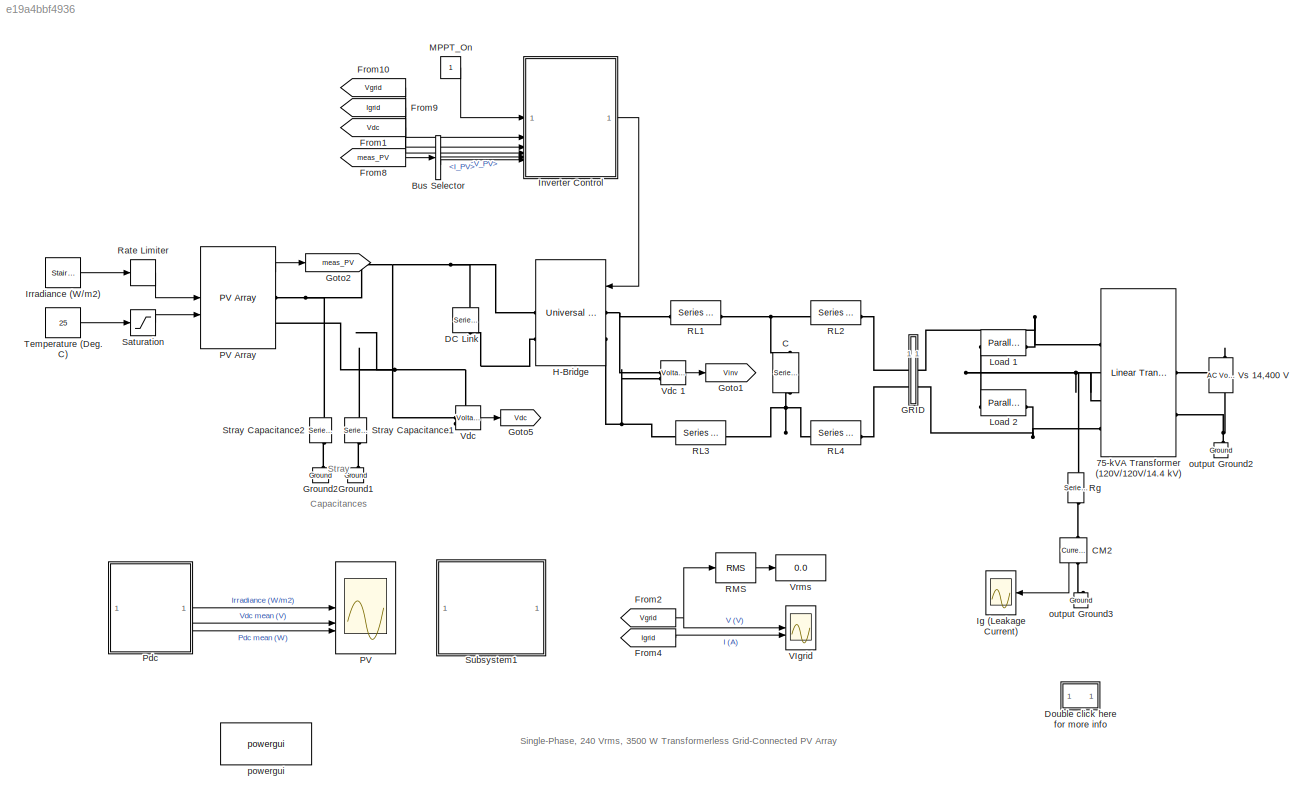
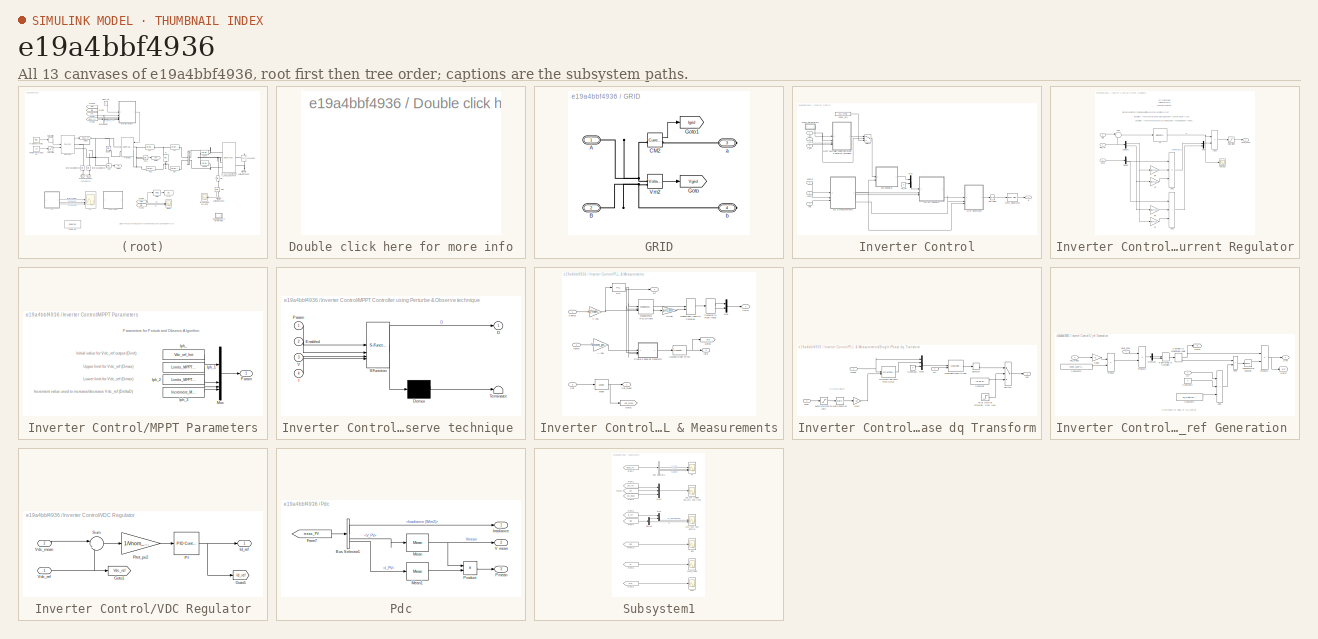
[diagram: thumbnail index - all 13 canvases of the model, root first then tree order]
MODEL slx_e19a4bbf4936
KIND model
CONFIG AbsTol = auto
CONFIG EnableMultiTasking = off
CONFIG FixedStep = auto
CONFIG InitFcn = %\nFc=3780;                          % PWM Carrier frequency (Hz) \nTs_Power=1/Fc/200;         % Simscape Power Systems sample time (s)\nTs_Control=20*Ts_Power;  % Inverter Control system sample time (s)
CONFIG MaxStep = auto
CONFIG MinStep = auto
CONFIG PreLoadFcn = %\nFc=3780;                          % PWM Carrier frequency (Hz) \nTs_Power=1/Fc/200;         % Simscape Power Systems sample time (s)\nTs_Control=20*Ts_Power;  % Inverter Control system sample time (s)
CONFIG RelTol = 1e-3
CONFIG SampleTimeConstraint = Unconstrained
CONFIG SolverName = FixedStepDiscrete
CONFIG StartTime = 0.0
CONFIG StopTime = 1.2
BLOCK [Reference] 75-kVA Transformer (120V//120V//14.4 kV)  REF=spsLinearTransformerLib/Linear Transformer
  LibrarySourceBlock = sps_lib/Power Grid Elements/Linear Transformer
  NameLocation = top
  SourceBlock = spsLinearTransformerLib/Linear Transformer
  SourceType = Linear Transformer
BLOCK [BusSelector] Bus Selector
  OutputSignals = V_PV,I_PV
BLOCK [Reference] C  REF=spsSeriesRLCLoadLib/Series RLC Load
  AttributesFormatString = \n
  LibrarySourceBlock = sps_lib/Passives/Series RLC Load
  NameLocation = right
  SourceBlock = spsSeriesRLCLoadLib/Series RLC Load
  SourceType = Series RLC Load
BLOCK [Reference] CM2  REF=spsCurrentMeasurementLib/Current Measurement
  LibrarySourceBlock = sps_lib/Sensors and Measurements/Current Measurement
  NameLocation = left
  SourceBlock = spsCurrentMeasurementLib/Current Measurement
  SourceType = Current Measurement
  UserDataPersistent = on
BLOCK [Reference] DC Link  REF=spsSeriesRLCBranchLib/Series RLC Branch
  AttributesFormatString = \n
  LibrarySourceBlock = sps_lib/Passives/Series RLC Branch
  NameLocation = left
  SourceBlock = spsSeriesRLCBranchLib/Series RLC Branch
  SourceType = Series RLC Branch
BLOCK [SubSystem] Double click here for more info
  OpenFcn = showdemo(bdroot(gcb))
BLOCK [From] From1
  CloseFcn = tagdialog Close
  GotoTag = Vdc
  TagVisibility = global
BLOCK [From] From10
  CloseFcn = tagdialog Close
  GotoTag = Vgrid
  TagVisibility = global
BLOCK [From] From2
  CloseFcn = tagdialog Close
  GotoTag = Vgrid
  TagVisibility = global
BLOCK [From] From4
  CloseFcn = tagdialog Close
  GotoTag = Igrid
  TagVisibility = global
BLOCK [From] From8
  CloseFcn = tagdialog Close
  GotoTag = meas_PV
  TagVisibility = global
BLOCK [From] From9
  CloseFcn = tagdialog Close
  GotoTag = Igrid
  TagVisibility = global
BLOCK [SubSystem] GRID
BLOCK [PMIOPort] GRID/A
  Side = Left
BLOCK [PMIOPort] GRID/B
  Port = 2
  Side = Left
BLOCK [Reference] GRID/CM2  REF=spsCurrentMeasurementLib/Current Measurement
  LibrarySourceBlock = sps_lib/Sensors and Measurements/Current Measurement
  SourceBlock = spsCurrentMeasurementLib/Current Measurement
  SourceType = Current Measurement
  UserDataPersistent = on
BLOCK [Goto] GRID/Goto
  GotoTag = Vgrid
  TagVisibility = global
BLOCK [Goto] GRID/Goto1
  GotoTag = Igrid
  TagVisibility = global
BLOCK [Reference] GRID/Vm2  REF=spsVoltageMeasurementLib/Voltage Measurement
  LibrarySourceBlock = sps_lib/Sensors and Measurements/Voltage Measurement
  SourceBlock = spsVoltageMeasurementLib/Voltage Measurement
  SourceType = Voltage Measurement
  UserDataPersistent = on
BLOCK [PMIOPort] GRID/a
  Port = 3
  Side = Right
BLOCK [PMIOPort] GRID/b
  Port = 4
  Side = Right
BLOCK [Goto] Goto1
  GotoTag = Vinv
  TagVisibility = global
BLOCK [Goto] Goto2
  GotoTag = meas_PV
  TagVisibility = global
BLOCK [Goto] Goto5
  GotoTag = Vdc
  TagVisibility = global
BLOCK [Reference] Ground1  REF=spsGroundLib/Ground
  LibrarySourceBlock = sps_lib/Utilities/Ground
  NameLocation = right
  SourceBlock = spsGroundLib/Ground
  SourceType = Ground
BLOCK [Reference] Ground2  REF=spsGroundLib/Ground
  LibrarySourceBlock = sps_lib/Utilities/Ground
  NameLocation = right
  SourceBlock = spsGroundLib/Ground
  SourceType = Ground
BLOCK [Reference] H-Bridge   REF=spsUniversalBridgeLib/Universal Bridge
  LibrarySourceBlock = sps_lib/Power Electronics/Universal Bridge
  SourceBlock = spsUniversalBridgeLib/Universal Bridge
  SourceType = Universal Bridge
BLOCK [Scope] Ig (Leakage Current)
  Floating = off
  NumInputPorts = 1
  ScopeSpecificationString = C++SS(StrPVP('Location','[1083, 173, 1496, 652]'),StrPVP('ZoomMode','yonly'),MxPVP('AxesTitles',54,'struct(''axes1'',''%<SignalLabel>'')'),MxPVP('ScopeGraphics',57,'struct(''FigureColor'',''[0.5 0.5 0.5]'',''AxesColor'',''[0 0 0]'',''AxesTickColor'',''[1 1 1]'',''LineColors'',''[1 1 0;1 0 1;0 1 1;1 0 0;0 1 0;0 0 1]'',''LineStyles'',''-|-|-|-|-|-'',''LineWidths'',''[0.5 0.5 0.5 0.5 0.5 0.5]'',''Mar...<+315ch>
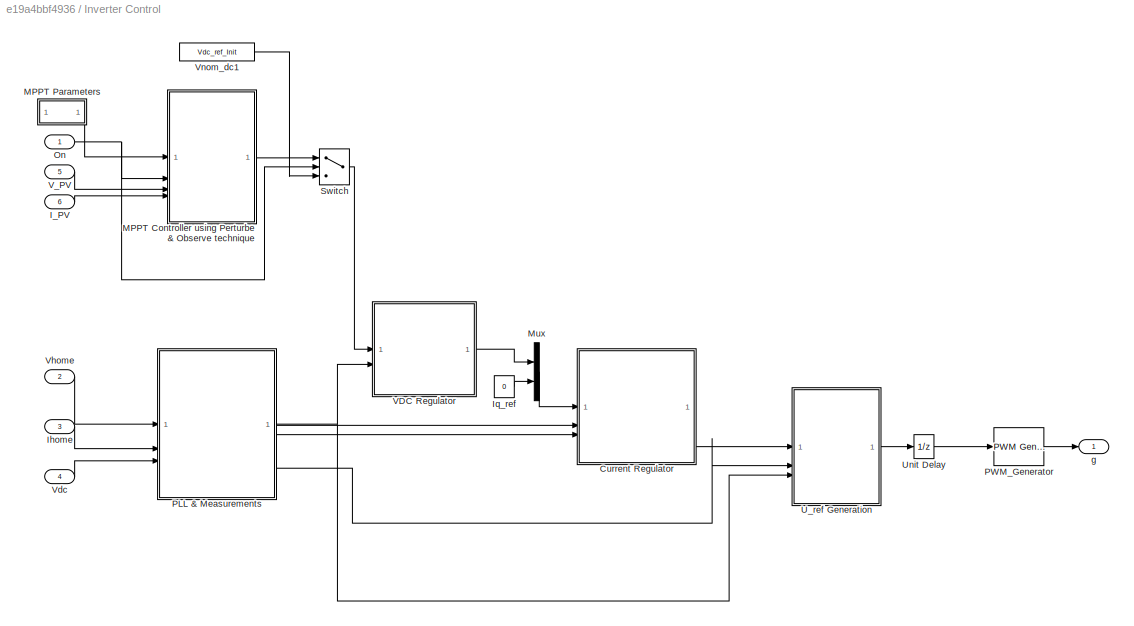
BLOCK [SubSystem] Inverter Control
BLOCK [SubSystem] Inverter Control/Current Regulator
BLOCK [Sum] Inverter Control/Current Regulator/Add1
  IconShape = rectangular
  Inputs = ++-
BLOCK [Sum] Inverter Control/Current Regulator/Add2
  IconShape = rectangular
BLOCK [Sum] Inverter Control/Current Regulator/Add3
  IconShape = rectangular
  Inputs = +++
BLOCK [Demux] Inverter Control/Current Regulator/Demux
  Outputs = 2
BLOCK [Demux] Inverter Control/Current Regulator/Demux1
  Outputs = 2
BLOCK [Inport] Inverter Control/Current Regulator/IdIq
  Port = 3
  PortDimensions = 2
BLOCK [Inport] Inverter Control/Current Regulator/IdIq_ref
  PortDimensions = 2
BLOCK [Gain] Inverter Control/Current Regulator/Lff
  Gain = RLff(2)
  OutDataTypeStr = Inherit: Same as input
  ParamDataTypeStr = Inherit: Same as input
  SaturateOnIntegerOverflow = on
BLOCK [Gain] Inverter Control/Current Regulator/Lff  
  Gain = RLff(2)
  OutDataTypeStr = Inherit: Same as input
  ParamDataTypeStr = Inherit: Same as input
  SaturateOnIntegerOverflow = on
BLOCK [Mux] Inverter Control/Current Regulator/Mux
  DisplayOption = bar
  Inputs = 2
BLOCK [Reference] Inverter Control/Current Regulator/PI  REF=slpidlib/PID Controller
  SourceBlock = slpidlib/PID Controller
  SourceType = PID 1dof
BLOCK [Scope] Inverter Control/Current Regulator/PI_Ireg1
  Floating = off
  NumInputPorts = 1
  ScopeSpecificationString = C++SS(StrPVP('Location','[1318, 429, 1642, 668]'),MxPVP('AxesTitles',54,'struct(''axes1'',''%<SignalLabel>'')'),MxPVP('ScopeGraphics',57,'struct(''FigureColor'',''[0.5 0.5 0.5]'',''AxesColor'',''[0 0 0]'',''AxesTickColor'',''[1 1 1]'',''LineColors'',''[1 1 0;1 0 1;0 1 1;1 0 0;0 1 0;0 0 1]'',''LineStyles'',''-|-|-|-|-|-'',''LineWidths'',''[0.5 0.5 0.5 0.5 0.5 0.5]'',''MarkerStyles'',''none|none|non...<+191ch>
BLOCK [Gain] Inverter Control/Current Regulator/Rff
  Gain = RLff(1)
  NameLocation = top
  OutDataTypeStr = Inherit: Same as input
  ParamDataTypeStr = Inherit: Same as input
  SaturateOnIntegerOverflow = on
BLOCK [Gain] Inverter Control/Current Regulator/Rff 
  Gain = RLff(1)
  NameLocation = top
  OutDataTypeStr = Inherit: Same as input
  ParamDataTypeStr = Inherit: Same as input
  SaturateOnIntegerOverflow = on
BLOCK [Saturate] Inverter Control/Current Regulator/Saturation
  LowerLimit = -1.5
  UpperLimit = 1.5
BLOCK [Sum] Inverter Control/Current Regulator/Sum
  Inputs = |-+
BLOCK [Inport] Inverter Control/Current Regulator/VdVq
  Port = 2
  PortDimensions = 2
BLOCK [Outport] Inverter Control/Current Regulator/VdVq_conv
  VectorParamsAs1DForOutWhenUnconnected = off
BLOCK [Inport] Inverter Control/I_PV
  Port = 6
  PortDimensions = 1
BLOCK [Inport] Inverter Control/Ihome
  Port = 3
  PortDimensions = 1
BLOCK [Constant] Inverter Control/Iq_ref
  NameLocation = top
  Value = 0
BLOCK [SubSystem] Inverter Control/MPPT Controller using Perturbe & Observe technique 
  ErrorFcn = Stateflow.Translate.translate
  PermitHierarchicalResolution = ExplicitOnly
  SFBlockType = MATLAB Function
  TreatAsAtomicUnit = on
BLOCK [Demux] Inverter Control/MPPT Controller using Perturbe & Observe technique / Demux 
  Outputs = 1
BLOCK [S-Function] Inverter Control/MPPT Controller using Perturbe & Observe technique / SFunction 
  EnableBusSupport = on
  FunctionName = sf_sfun
  PortCounts = [4 2]
  SFcnIsStateOwnerBlock = off
  SFunctionDeploymentMode = off
  Tag = Stateflow S-Function 2
BLOCK [Terminator] Inverter Control/MPPT Controller using Perturbe & Observe technique / Terminator 
BLOCK [Outport] Inverter Control/MPPT Controller using Perturbe & Observe technique /D
  VectorParamsAs1DForOutWhenUnconnected = off
BLOCK [Inport] Inverter Control/MPPT Controller using Perturbe & Observe technique /Enabled
  Port = 2
BLOCK [Inport] Inverter Control/MPPT Controller using Perturbe & Observe technique /I
  Port = 4
BLOCK [Inport] Inverter Control/MPPT Controller using Perturbe & Observe technique /Param
BLOCK [Inport] Inverter Control/MPPT Controller using Perturbe & Observe technique /V
  Port = 3
BLOCK [SubSystem] Inverter Control/MPPT Parameters
  NameLocation = top
BLOCK [Constant] Inverter Control/MPPT Parameters/Iph_
  Value = Vdc_ref_Init
BLOCK [Constant] Inverter Control/MPPT Parameters/Iph_1
  Value = Limits_MPPT(1)
BLOCK [Constant] Inverter Control/MPPT Parameters/Iph_2
  Value = Limits_MPPT(2)
BLOCK [Constant] Inverter Control/MPPT Parameters/Iph_3
  Value = Increment_MPPT
BLOCK [Mux] Inverter Control/MPPT Parameters/Mux
  DisplayOption = bar
BLOCK [Outport] Inverter Control/MPPT Parameters/Param
  VectorParamsAs1DForOutWhenUnconnected = off
BLOCK [Mux] Inverter Control/Mux
  DisplayOption = bar
  Inputs = 2
BLOCK [Inport] Inverter Control/On
  PortDimensions = 1
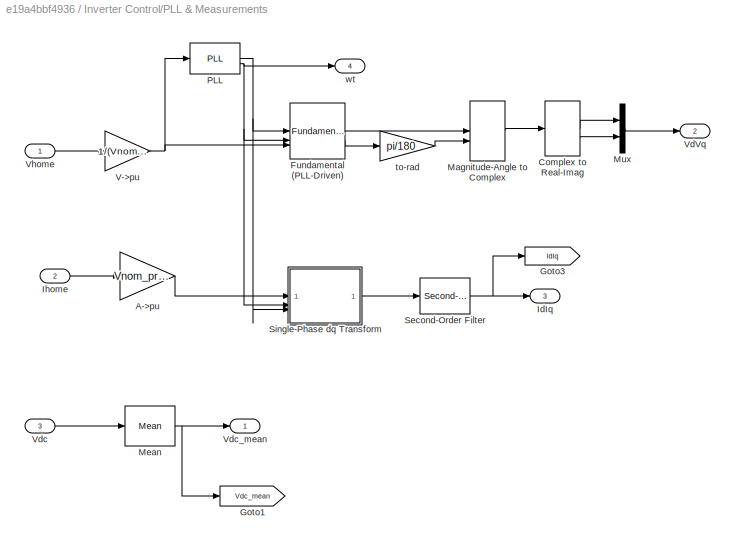
BLOCK [SubSystem] Inverter Control/PLL & Measurements
BLOCK [Gain] Inverter Control/PLL & Measurements/A->pu
  Gain = Vnom_prim/Pnom/sqrt(2)
  OutDataTypeStr = Inherit: Same as input
  ParamDataTypeStr = Inherit: Same as input
  SaturateOnIntegerOverflow = on
BLOCK [ComplexToRealImag] Inverter Control/PLL & Measurements/Complex to Real-Imag
BLOCK [Reference] Inverter Control/PLL & Measurements/Fundamental (PLL-Driven)  REF=spsFundamentalPLLDrivenLib/Fundamental
(PLL-Driven)
  LibrarySourceBlock = sps_lib/Sensors and Measurements/Fundamental\n(PLL-Driven)
  SourceBlock = spsFundamentalPLLDrivenLib/Fundamental\n(PLL-Driven)
  SourceType = Fundamental (PLL-Driven)
BLOCK [Goto] Inverter Control/PLL & Measurements/Goto1
  GotoTag = Vdc_mean
  TagVisibility = global
BLOCK [Goto] Inverter Control/PLL & Measurements/Goto3
  GotoTag = IdIq
  TagVisibility = global
BLOCK [Outport] Inverter Control/PLL & Measurements/IdIq
  Port = 3
  VectorParamsAs1DForOutWhenUnconnected = off
BLOCK [Inport] Inverter Control/PLL & Measurements/Ihome
  Port = 2
BLOCK [MagnitudeAngleToComplex] Inverter Control/PLL & Measurements/Magnitude-Angle to Complex
BLOCK [Reference] Inverter Control/PLL & Measurements/Mean  REF=spsMeanLib/Mean
  LibrarySourceBlock = sps_lib/Sensors and Measurements/Mean
  SourceBlock = spsMeanLib/Mean
  SourceType = Mean
BLOCK [Mux] Inverter Control/PLL & Measurements/Mux
  DisplayOption = bar
  Inputs = 2
BLOCK [Reference] Inverter Control/PLL & Measurements/PLL  REF=spsPLLLib/PLL
  LibrarySourceBlock = sps_lib/Control/PLL
  SourceBlock = spsPLLLib/PLL
  SourceType = PLL
BLOCK [Reference] Inverter Control/PLL & Measurements/Second-Order Filter  REF=spsSecondOrderFilterLib/Second-Order
Filter
  LibrarySourceBlock = sps_lib/Control/Filters/Second-Order\nFilter
  SourceBlock = spsSecondOrderFilterLib/Second-Order\nFilter
  SourceType = Second-Order Filter
BLOCK [SubSystem] Inverter Control/PLL & Measurements/Single-Phase dq Transform
BLOCK [Reference] Inverter Control/PLL & Measurements/Single-Phase dq Transform/Alpha-Beta-Zero to dq0  REF=spsAlphaBetaZerotodq0Lib/Alpha-Beta-Zero
to dq0
  LibrarySourceBlock = sps_lib/Control/Alpha-Beta-Zero\nto dq0
  SourceBlock = spsAlphaBetaZerotodq0Lib/Alpha-Beta-Zero\nto dq0
  SourceType = Alpha-Beta-Zero to dq0 Transformation
BLOCK [Constant] Inverter Control/PLL & Measurements/Single-Phase dq Transform/Constant
  Value = [0.92 0]
BLOCK [Constant] Inverter Control/PLL & Measurements/Single-Phase dq Transform/Constant1
  Value = 0
BLOCK [Reference] Inverter Control/PLL & Measurements/Single-Phase dq Transform/Discrete Variable Time Delay  REF=spsDiscreteVariableTimeDelayLib/Discrete Variable
Time Delay
  LibrarySourceBlock = sps_lib/Control/Discrete Variable\nTime Delay
  SourceBlock = spsDiscreteVariableTimeDelayLib/Discrete Variable\nTime Delay
  SourceType = Discrete Variable Time Delay
BLOCK [Step] Inverter Control/PLL & Measurements/Single-Phase dq Transform/First cycle of simulation Id=0.92, Iq=0
  SampleTime = Ts_Control
  Time = 1/Fnom
BLOCK [Inport] Inverter Control/PLL & Measurements/Single-Phase dq Transform/Freq
  Port = 3
BLOCK [Gain] Inverter Control/PLL & Measurements/Single-Phase dq Transform/Gain
  Gain = 1/4
BLOCK [Outport] Inverter Control/PLL & Measurements/Single-Phase dq Transform/Idq
  VectorParamsAs1DForOutWhenUnconnected = off
BLOCK [Inport] Inverter Control/PLL & Measurements/Single-Phase dq Transform/Imeas
BLOCK [Math] Inverter Control/PLL & Measurements/Single-Phase dq Transform/Math Function
  Operator = reciprocal
  SignedPower = on
BLOCK [Mux] Inverter Control/PLL & Measurements/Single-Phase dq Transform/Mux1
  DisplayOption = bar
  Inputs = 3
BLOCK [Selector] Inverter Control/PLL & Measurements/Single-Phase dq Transform/Selector
  IndexOptions = Index vector (dialog)
  Indices = [1 2]
  InputPortWidth = 3
  OutputSizes = 1
BLOCK [Switch] Inverter Control/PLL & Measurements/Single-Phase dq Transform/Switch
  Criteria = u2 ~= 0
  InputSameDT = off
  SaturateOnIntegerOverflow = off
BLOCK [Saturate] Inverter Control/PLL & Measurements/Single-Phase dq Transform/avoid division by zero
  LowerLimit = 40
  UpperLimit = 70
BLOCK [Inport] Inverter Control/PLL & Measurements/Single-Phase dq Transform/wt
  Port = 2
BLOCK [Gain] Inverter Control/PLL & Measurements/V->pu
  Gain = 1/(Vnom_prim*sqrt(2))
  OutDataTypeStr = Inherit: Same as input
  ParamDataTypeStr = Inherit: Same as input
  SaturateOnIntegerOverflow = on
BLOCK [Outport] Inverter Control/PLL & Measurements/VdVq
  Port = 2
  VectorParamsAs1DForOutWhenUnconnected = off
BLOCK [Inport] Inverter Control/PLL & Measurements/Vdc
  Port = 3
BLOCK [Outport] Inverter Control/PLL & Measurements/Vdc_mean
  VectorParamsAs1DForOutWhenUnconnected = off
BLOCK [Inport] Inverter Control/PLL & Measurements/Vhome
BLOCK [Gain] Inverter Control/PLL & Measurements/to-rad
  Gain = pi/180
BLOCK [Outport] Inverter Control/PLL & Measurements/wt
  Port = 4
  VectorParamsAs1DForOutWhenUnconnected = off
BLOCK [Reference] Inverter Control/PWM_Generator  REF=spsPWMGenerator2LevelLib/PWM Generator
(2-Level)
  AttributesFormatString = %<ModulatorType>
  LibrarySourceBlock = sps_lib/Power Electronics/Power Electronics Control/PWM Generator\n(2-Level)
  SourceBlock = spsPWMGenerator2LevelLib/PWM Generator\n(2-Level)
  SourceType = PWM Generator (2-Level)
BLOCK [Switch] Inverter Control/Switch
  Criteria = u2 ~= 0
  InputSameDT = off
  SaturateOnIntegerOverflow = off
BLOCK [SubSystem] Inverter Control/U_ref Generation 
BLOCK [Sum] Inverter Control/U_ref Generation /Add1
  IconShape = rectangular
  Inputs = +++
BLOCK [Sum] Inverter Control/U_ref Generation /Add2
  IconShape = rectangular
BLOCK [ComplexToMagnitudeAngle] Inverter Control/U_ref Generation /Complex to Magnitude-Angle
BLOCK [Constant] Inverter Control/U_ref Generation /Constant2
  Value = 0
BLOCK [Constant] Inverter Control/U_ref Generation /Constant3
  Value = Vnom_prim*sqrt(2)
BLOCK [Constant] Inverter Control/U_ref Generation /Constant4
  Value = Ts_Control*Fnom*(2*pi)
BLOCK [Demux] Inverter Control/U_ref Generation /Demux1
  Outputs = 2
BLOCK [Gain] Inverter Control/U_ref Generation /Gain1
BLOCK [Goto] Inverter Control/U_ref Generation /Goto1
  GotoTag = m
  TagVisibility = global
BLOCK [Goto] Inverter Control/U_ref Generation /Goto2
  GotoTag = Uref
  TagVisibility = global
BLOCK [Product] Inverter Control/U_ref Generation /Product
  Inputs = */
  RndMeth = Zero
BLOCK [Product] Inverter Control/U_ref Generation /Product1
  Inputs = */
  RndMeth = Zero
BLOCK [Product] Inverter Control/U_ref Generation /Product2
  Inputs = **
  RndMeth = Zero
BLOCK [RealImagToComplex] Inverter Control/U_ref Generation /Real-Imag to Complex
BLOCK [Trigonometry] Inverter Control/U_ref Generation /Trigonometric Function
BLOCK [Outport] Inverter Control/U_ref Generation /Uref
  VectorParamsAs1DForOutWhenUnconnected = off
BLOCK [Inport] Inverter Control/U_ref Generation /VdVq_conv
BLOCK [Inport] Inverter Control/U_ref Generation /Vdc_mean
  Port = 3
BLOCK [Inport] Inverter Control/U_ref Generation /wt
  Port = 2
BLOCK [UnitDelay] Inverter Control/Unit Delay
  HasFrameUpgradeWarning = on
  InitialCondition = 0.1684
  NameLocation = top
  SampleTime = Ts_Control
BLOCK [SubSystem] Inverter Control/VDC Regulator
  NameLocation = top
BLOCK [Goto] Inverter Control/VDC Regulator/Goto1
  GotoTag = Vdc_ref
  TagVisibility = global
BLOCK [Goto] Inverter Control/VDC Regulator/Goto5
  GotoTag = Id_ref
  TagVisibility = global
BLOCK [Outport] Inverter Control/VDC Regulator/Id_ref
  InitialOutput = 0
  VectorParamsAs1DForOutWhenUnconnected = off
BLOCK [Reference] Inverter Control/VDC Regulator/PI  REF=slpidlib/PID Controller
  SourceBlock = slpidlib/PID Controller
  SourceType = PID 1dof
BLOCK [Gain] Inverter Control/VDC Regulator/Rtot_pu2
  Gain = 1/Vnom_dc
  OutDataTypeStr = Inherit: Same as input
  ParamDataTypeStr = Inherit: Same as input
  SaturateOnIntegerOverflow = on
BLOCK [Sum] Inverter Control/VDC Regulator/Sum
  Inputs = |+-
BLOCK [Inport] Inverter Control/VDC Regulator/Vdc_mean
  Port = 2
  PortDimensions = 1
BLOCK [Inport] Inverter Control/VDC Regulator/Vdc_ref
  PortDimensions = 1
BLOCK [Inport] Inverter Control/V_PV
  Port = 5
  PortDimensions = 1
BLOCK [Inport] Inverter Control/Vdc
  Port = 4
  PortDimensions = 1
BLOCK [Inport] Inverter Control/Vhome
  Port = 2
  PortDimensions = 1
BLOCK [Constant] Inverter Control/Vnom_dc1
  Value = Vdc_ref_Init
BLOCK [Outport] Inverter Control/g
  NameLocation = top
  VectorParamsAs1DForOutWhenUnconnected = off
BLOCK [Reference] Irradiance (W//m2)  REF=spsStairGeneratorLib/Stair
Generator
  LibrarySourceBlock = sps_lib/Sources/Signal Generator Sources/Stair\nGenerator
  NameLocation = top
  SourceBlock = spsStairGeneratorLib/Stair\nGenerator
  SourceType = Stair Generator
BLOCK [Reference] Load 1  REF=spsParallelRLCLoadLib/Parallel RLC Load
  AttributesFormatString = \n
  LibrarySourceBlock = sps_lib/Passives/Parallel RLC Load
  NameLocation = top
  SourceBlock = spsParallelRLCLoadLib/Parallel RLC Load
  SourceType = Parallel RLC Load
BLOCK [Reference] Load 2  REF=spsParallelRLCLoadLib/Parallel RLC Load
  AttributesFormatString = \n
  LibrarySourceBlock = sps_lib/Passives/Parallel RLC Load
  SourceBlock = spsParallelRLCLoadLib/Parallel RLC Load
  SourceType = Parallel RLC Load
BLOCK [Constant] MPPT_On
  NameLocation = top
BLOCK [Scope] PV
  Floating = off
  NumInputPorts = 3
  ScopeSpecificationString = Simulink.scopes.TimeScopeBlockCfg('CurrentConfiguration', extmgr.ConfigurationSet(extmgr.Configuration('Core','General UI',true),extmgr.Configuration('Core','Source UI',true),extmgr.Configuration('Sources','WiredSimulink',true,'DataLoggingDecimation','10','DataLoggingDecimateData',true,'DataLoggingSaveFormat','Array'),extmgr.Configuration('Visuals','Time Domain',true,'SerializedDisplays',{struct('...<+3320ch>
BLOCK [Reference] PV Array  REF=spsPVArrayLib/PV Array
  AttributesFormatString = %<ModuleName>\n%<Nser>-module string\n%<Npar> parallel strings
  LibrarySourceBlock = sps_lib/Sources/PV Array
  SourceBlock = spsPVArrayLib/PV Array
  SourceType = PV array
BLOCK [SubSystem] Pdc
BLOCK [BusSelector] Pdc/Bus Selector1
  OutputSignals = Irradiance (W/m2),V_PV,I_PV
BLOCK [From] Pdc/From7
  CloseFcn = tagdialog Close
  GotoTag = meas_PV
  TagVisibility = global
BLOCK [Outport] Pdc/Irradiance
  VectorParamsAs1DForOutWhenUnconnected = off
BLOCK [Reference] Pdc/Mean  REF=spsMeanLib/Mean
  LibrarySourceBlock = sps_lib/Sensors and Measurements/Mean
  SourceBlock = spsMeanLib/Mean
  SourceType = Mean
BLOCK [Reference] Pdc/Mean1  REF=spsMeanLib/Mean
  LibrarySourceBlock = sps_lib/Sensors and Measurements/Mean
  SourceBlock = spsMeanLib/Mean
  SourceType = Mean
BLOCK [Outport] Pdc/Pmean
  Port = 3
  VectorParamsAs1DForOutWhenUnconnected = off
BLOCK [Product] Pdc/Product
BLOCK [Outport] Pdc/V mean
  Port = 2
  VectorParamsAs1DForOutWhenUnconnected = off
BLOCK [Reference] RL1  REF=spsSeriesRLCBranchLib/Series RLC Branch
  LibrarySourceBlock = sps_lib/Passives/Series RLC Branch
  NameLocation = top
  SourceBlock = spsSeriesRLCBranchLib/Series RLC Branch
  SourceType = Series RLC Branch
BLOCK [Reference] RL2  REF=spsSeriesRLCBranchLib/Series RLC Branch
  LibrarySourceBlock = sps_lib/Passives/Series RLC Branch
  NameLocation = top
  SourceBlock = spsSeriesRLCBranchLib/Series RLC Branch
  SourceType = Series RLC Branch
BLOCK [Reference] RL3  REF=spsSeriesRLCBranchLib/Series RLC Branch
  LibrarySourceBlock = sps_lib/Passives/Series RLC Branch
  NameLocation = top
  SourceBlock = spsSeriesRLCBranchLib/Series RLC Branch
  SourceType = Series RLC Branch
BLOCK [Reference] RL4  REF=spsSeriesRLCBranchLib/Series RLC Branch
  LibrarySourceBlock = sps_lib/Passives/Series RLC Branch
  NameLocation = top
  SourceBlock = spsSeriesRLCBranchLib/Series RLC Branch
  SourceType = Series RLC Branch
BLOCK [Reference] RMS  REF=spsRMSLib/RMS
  LibrarySourceBlock = sps_lib/Sensors and Measurements/RMS
  NameLocation = top
  SourceBlock = spsRMSLib/RMS
  SourceType = RMS
BLOCK [RateLimiter] Rate Limiter
  FallingSlewLimit = -8000
  InitialCondition = 1000
  NameLocation = top
  RisingSlewLimit = 8000
  SampleTimeMode = inherited
BLOCK [Reference] Rg  REF=spsSeriesRLCBranchLib/Series RLC Branch
  LibrarySourceBlock = sps_lib/Passives/Series RLC Branch
  NameLocation = left
  SourceBlock = spsSeriesRLCBranchLib/Series RLC Branch
  SourceType = Series RLC Branch
BLOCK [Saturate] Saturation
  LowerLimit = 5
  UpperLimit = 55
BLOCK [Reference] Stray Capacitance1  REF=spsSeriesRLCBranchLib/Series RLC Branch
  LibrarySourceBlock = sps_lib/Passives/Series RLC Branch
  NameLocation = left
  SourceBlock = spsSeriesRLCBranchLib/Series RLC Branch
  SourceType = Series RLC Branch
BLOCK [Reference] Stray Capacitance2  REF=spsSeriesRLCBranchLib/Series RLC Branch
  LibrarySourceBlock = sps_lib/Passives/Series RLC Branch
  NameLocation = left
  SourceBlock = spsSeriesRLCBranchLib/Series RLC Branch
  SourceType = Series RLC Branch
BLOCK [SubSystem] Subsystem1
  NameLocation = top
BLOCK [BusSelector] Subsystem1/Bus Selector1
  OutputSignals = V_PV,I_PV,I_diode
BLOCK [Demux] Subsystem1/Demux
  Outputs = 2
BLOCK [From] Subsystem1/From1
  GotoTag = Vdc_ref
  TagVisibility = global
BLOCK [From] Subsystem1/From13
  CloseFcn = tagdialog Close
  GotoTag = Vinv
  TagVisibility = global
BLOCK [From] Subsystem1/From2
  GotoTag = Vdc
  TagVisibility = global
BLOCK [From] Subsystem1/From3
  CloseFcn = tagdialog Close
  GotoTag = Uref
  TagVisibility = global
BLOCK [From] Subsystem1/From4
  CloseFcn = tagdialog Close
  GotoTag = IdIq
  TagVisibility = global
BLOCK [From] Subsystem1/From5
  CloseFcn = tagdialog Close
  GotoTag = Id_ref
  TagVisibility = global
BLOCK [From] Subsystem1/From7
  CloseFcn = tagdialog Close
  GotoTag = meas_PV
  TagVisibility = global
BLOCK [From] Subsystem1/From8
  CloseFcn = tagdialog Close
  GotoTag = m
  TagVisibility = global
BLOCK [From] Subsystem1/From9
  GotoTag = Vdc_mean
  TagVisibility = global
BLOCK [Scope] Subsystem1/IdIq (pu) VSC Control
  Floating = off
  NumInputPorts = 2
  ScopeSpecificationString = Simulink.scopes.TimeScopeBlockCfg('CurrentConfiguration', extmgr.ConfigurationSet(extmgr.Configuration('Core','General UI',true),extmgr.Configuration('Core','Source UI',true),extmgr.Configuration('Sources','WiredSimulink',true,'DataLoggingSaveFormat','Array','DataLoggingDecimation','1','DataLoggingDecimateData',true),extmgr.Configuration('Visuals','Time Domain',true,'SerializedDisplays',{struct('M...<+2533ch>
BLOCK [Scope] Subsystem1/Mod_Index
  Floating = off
  NumInputPorts = 1
  ScopeSpecificationString = Simulink.scopes.TimeScopeBlockCfg('CurrentConfiguration', extmgr.ConfigurationSet(extmgr.Configuration('Core','General UI',true),extmgr.Configuration('Core','Source UI',true),extmgr.Configuration('Sources','WiredSimulink',true,'DataLoggingVariableName','Vab_VSC','DataLoggingSaveFormat','StructureWithTime','DataLoggingDecimation','1','DataLoggingDecimateData',true),extmgr.Configuration('Visuals','T...<+1816ch>
BLOCK [Mux] Subsystem1/Mux
  DisplayOption = bar
  Inputs = 2
BLOCK [Mux] Subsystem1/Mux1
  DisplayOption = bar
  Inputs = 3
BLOCK [Scope] Subsystem1/PV
  Floating = off
  NumInputPorts = 3
  ScopeSpecificationString = Simulink.scopes.TimeScopeBlockCfg('CurrentConfiguration', extmgr.ConfigurationSet(extmgr.Configuration('Core','General UI',true),extmgr.Configuration('Core','Source UI',true),extmgr.Configuration('Sources','WiredSimulink',true,'DataLoggingVariableName','ScopeData2','DataLoggingDecimation','10','DataLoggingDecimateData',true,'DataLoggingSaveFormat','Array'),extmgr.Configuration('Visuals','Time Doma...<+3357ch>
BLOCK [Scope] Subsystem1/Uref
  Floating = off
  NumInputPorts = 1
  ScopeSpecificationString = C++SS(StrPVP('Location','[761, 234, 1188, 708]'),StrPVP('ZoomMode','xonly'),MxPVP('AxesTitles',54,'struct(''axes1'',''%<SignalLabel>'')'),MxPVP('ScopeGraphics',57,'struct(''FigureColor'',''[0.5 0.5 0.5]'',''AxesColor'',''[0 0 0]'',''AxesTickColor'',''[1 1 1]'',''LineColors'',''[1 1 0;1 0 1;0 1 1;1 0 0;0 1 0;0 0 1]'',''LineStyles'',''-|-|-|-|-|-'',''LineWidths'',''[0.5 0.5 0.5 0.5 0.5 0.5]'',''Mark...<+279ch>
BLOCK [Scope] Subsystem1/Vdc_ref (yellow) Vdc_meas (blue) Vdc_mean (red)
  Floating = off
  NumInputPorts = 1
  ScopeSpecificationString = Simulink.scopes.TimeScopeBlockCfg('CurrentConfiguration', extmgr.ConfigurationSet(extmgr.Configuration('Core','General UI',true),extmgr.Configuration('Core','Source UI',true),extmgr.Configuration('Sources','WiredSimulink',true,'DataLoggingVariableName','ScopeData1','DataLoggingDecimation','10','DataLoggingDecimateData',true,'DataLoggingSaveFormat','Array'),extmgr.Configuration('Visuals','Time Doma...<+1775ch>
BLOCK [Scope] Subsystem1/Vinv
  Floating = off
  NumInputPorts = 1
  ScopeSpecificationString = Simulink.scopes.TimeScopeBlockCfg('CurrentConfiguration', extmgr.ConfigurationSet(extmgr.Configuration('Core','General UI',true),extmgr.Configuration('Core','Source UI',true),extmgr.Configuration('Sources','WiredSimulink',true,'DataLogging',true,'DataLoggingVariableName','Vinv','DataLoggingSaveFormat','StructureWithTime','DataLoggingDecimation','1','DataLoggingDecimateData',true),extmgr.Configurat...<+1853ch>
BLOCK [Constant] Temperature (Deg. C)
  Value = 25
BLOCK [Scope] VIgrid
  Floating = off
  NumInputPorts = 2
  ScopeSpecificationString = Simulink.scopes.TimeScopeBlockCfg('CurrentConfiguration', extmgr.ConfigurationSet(extmgr.Configuration('Core','General UI',true),extmgr.Configuration('Core','Source UI',true),extmgr.Configuration('Sources','WiredSimulink',true,'DataLogging',true,'DataLoggingVariableName','VIgrid','DataLoggingSaveFormat','StructureWithTime','DataLoggingDecimation','1','DataLoggingDecimateData',true),extmgr.Configur...<+2378ch>
BLOCK [Reference] Vdc   REF=spsVoltageMeasurementLib/Voltage Measurement
  AttributesFormatString = \n
  LibrarySourceBlock = sps_lib/Sensors and Measurements/Voltage Measurement
  NameLocation = top
  SourceBlock = spsVoltageMeasurementLib/Voltage Measurement
  SourceType = Voltage Measurement
  Tag = PoWeRsYsTeMmEaSuReMeNt
BLOCK [Reference] Vdc 1  REF=spsVoltageMeasurementLib/Voltage Measurement
  AttributesFormatString = \n
  LibrarySourceBlock = sps_lib/Sensors and Measurements/Voltage Measurement
  NameLocation = top
  SourceBlock = spsVoltageMeasurementLib/Voltage Measurement
  SourceType = Voltage Measurement
  Tag = PoWeRsYsTeMmEaSuReMeNt
BLOCK [Display] Vrms
  Decimation = 200
BLOCK [Reference] Vs 14,400 V  REF=spsACVoltageSourceLib/AC Voltage Source
  AttributesFormatString = \n
  Description = source block
  LibrarySourceBlock = sps_lib/Sources/AC Voltage Source
  NameLocation = right
  SourceBlock = spsACVoltageSourceLib/AC Voltage Source
  SourceType = AC Voltage Source
BLOCK [Reference] output Ground2  REF=spsGroundLib/Ground
  AttributesFormatString = \n
  LibrarySourceBlock = sps_lib/Utilities/Ground
  NameLocation = right
  SourceBlock = spsGroundLib/Ground
  SourceType = Ground
BLOCK [Reference] output Ground3  REF=spsGroundLib/Ground
  AttributesFormatString = \n
  LibrarySourceBlock = sps_lib/Utilities/Ground
  NameLocation = right
  SourceBlock = spsGroundLib/Ground
  SourceType = Ground
BLOCK [Reference] powergui  REF=sps_lib/powergui
  LibrarySourceBlock = sps_lib/powergui
  Priority = 1
  SourceBlock = sps_lib/powergui
  SourceType = PSB option menu block
ANNOTATION (root): Single-Phase, 240 Vrms, 3500 W Transformerless Grid-Connected PV Array
ANNOTATION (root): Stray Capacitances
ANNOTATION Inverter Control/Current Regulator: Capacitor neglected
ANNOTATION Inverter Control/Current Regulator: Current Regulator (with feedforward)
ANNOTATION Inverter Control/Current Regulator: Id positive --> The converter generates active power ("Inverter mode") = Active Power P positive
ANNOTATION Inverter Control/Current Regulator: Iq positive --> The converter absorbs reactive power ("Inductive mode") = Reactive Power Q negative
ANNOTATION Inverter Control/Current Regulator: Sign Convention: Current going out of the converter = positive current
ANNOTATION Inverter Control/MPPT Parameters: Increment value used to increase/decrease Vdc_ref (DeltaD)
ANNOTATION Inverter Control/MPPT Parameters: Initial value for Vdc_ref output (Dinit)
ANNOTATION Inverter Control/MPPT Parameters: Lower limit for Vdc_ref (Dmax)
ANNOTATION Inverter Control/MPPT Parameters: Parameters for Perturb and Observe Algorithm:
ANNOTATION Inverter Control/MPPT Parameters: Upper limit for Vdc_ref (Dmax)
ANNOTATION Inverter Control/PLL & Measurements/Single-Phase dq Transform: 1/4 cycle delay
ANNOTATION Inverter Control/U_ref Generation : (Correction for delay of Ts_Control)
LINE Bus Selector:1 -> Inverter Control:5
LINE Bus Selector:2 -> Inverter Control:6
LINE CM2:1 -> Ig (Leakage Current):1
LINE From10:1 -> Inverter Control:2
LINE From1:1 -> Inverter Control:4
NET From2:1 -> RMS:1, VIgrid:1
LINE From4:1 -> VIgrid:2
LINE From8:1 -> Bus Selector:1
LINE From9:1 -> Inverter Control:3
LINE GRID/CM2:1 -> GRID/Goto1:1
LINE GRID/Vm2:1 -> GRID/Goto:1
LINE Inverter Control/Current Regulator/Add1:1 -> Inverter Control/Current Regulator/Mux:1
LINE Inverter Control/Current Regulator/Add2:1 -> Inverter Control/Current Regulator/Saturation:1
LINE Inverter Control/Current Regulator/Add3:1 -> Inverter Control/Current Regulator/Mux:2
NET Inverter Control/Current Regulator/Demux1:1 -> Inverter Control/Current Regulator/Lff:1, Inverter Control/Current Regulator/Rff :1
NET Inverter Control/Current Regulator/Demux1:2 -> Inverter Control/Current Regulator/Lff  :1, Inverter Control/Current Regulator/Rff:1
LINE Inverter Control/Current Regulator/Demux:1 -> Inverter Control/Current Regulator/Add1:1
LINE Inverter Control/Current Regulator/Demux:2 -> Inverter Control/Current Regulator/Add3:1
LINE Inverter Control/Current Regulator/IdIq:1 -> Inverter Control/Current Regulator/Sum:1
NET Inverter Control/Current Regulator/IdIq_ref:1 -> Inverter Control/Current Regulator/Demux1:1, Inverter Control/Current Regulator/Sum:2
LINE Inverter Control/Current Regulator/Lff  :1 -> Inverter Control/Current Regulator/Add1:3
LINE Inverter Control/Current Regulator/Lff:1 -> Inverter Control/Current Regulator/Add3:3
LINE Inverter Control/Current Regulator/Mux:1 -> Inverter Control/Current Regulator/Add2:2
NET Inverter Control/Current Regulator/PI:1 -> Inverter Control/Current Regulator/Add2:1, Inverter Control/Current Regulator/PI_Ireg1:1
LINE Inverter Control/Current Regulator/Rff :1 -> Inverter Control/Current Regulator/Add1:2
LINE Inverter Control/Current Regulator/Rff:1 -> Inverter Control/Current Regulator/Add3:2
LINE Inverter Control/Current Regulator/Saturation:1 -> Inverter Control/Current Regulator/VdVq_conv:1
LINE Inverter Control/Current Regulator/Sum:1 -> Inverter Control/Current Regulator/PI:1
LINE Inverter Control/Current Regulator/VdVq:1 -> Inverter Control/Current Regulator/Demux:1
LINE Inverter Control/Current Regulator:1 -> Inverter Control/U_ref Generation :1
LINE Inverter Control/I_PV:1 -> Inverter Control/MPPT Controller using Perturbe & Observe technique :4
LINE Inverter Control/Ihome:1 -> Inverter Control/PLL & Measurements:2
LINE Inverter Control/Iq_ref:1 -> Inverter Control/Mux:2
LINE Inverter Control/MPPT Controller using Perturbe & Observe technique :1 -> Inverter Control/Switch:1
LINE Inverter Control/MPPT Parameters/Iph_1:1 -> Inverter Control/MPPT Parameters/Mux:2
LINE Inverter Control/MPPT Parameters/Iph_2:1 -> Inverter Control/MPPT Parameters/Mux:3
LINE Inverter Control/MPPT Parameters/Iph_3:1 -> Inverter Control/MPPT Parameters/Mux:4
LINE Inverter Control/MPPT Parameters/Iph_:1 -> Inverter Control/MPPT Parameters/Mux:1
LINE Inverter Control/MPPT Parameters/Mux:1 -> Inverter Control/MPPT Parameters/Param:1
LINE Inverter Control/MPPT Parameters:1 -> Inverter Control/MPPT Controller using Perturbe & Observe technique :1
LINE Inverter Control/Mux:1 -> Inverter Control/Current Regulator:1
NET Inverter Control/On:1 -> Inverter Control/MPPT Controller using Perturbe & Observe technique :2, Inverter Control/Switch:2
LINE Inverter Control/PLL & Measurements/A->pu:1 -> Inverter Control/PLL & Measurements/Single-Phase dq Transform:1
LINE Inverter Control/PLL & Measurements/Complex to Real-Imag:1 -> Inverter Control/PLL & Measurements/Mux:1
LINE Inverter Control/PLL & Measurements/Complex to Real-Imag:2 -> Inverter Control/PLL & Measurements/Mux:2
LINE Inverter Control/PLL & Measurements/Fundamental (PLL-Driven):1 -> Inverter Control/PLL & Measurements/Magnitude-Angle to Complex:1
LINE Inverter Control/PLL & Measurements/Fundamental (PLL-Driven):2 -> Inverter Control/PLL & Measurements/to-rad:1
LINE Inverter Control/PLL & Measurements/Ihome:1 -> Inverter Control/PLL & Measurements/A->pu:1
LINE Inverter Control/PLL & Measurements/Magnitude-Angle to Complex:1 -> Inverter Control/PLL & Measurements/Complex to Real-Imag:1
NET Inverter Control/PLL & Measurements/Mean:1 -> Inverter Control/PLL & Measurements/Goto1:1, Inverter Control/PLL & Measurements/Vdc_mean:1
LINE Inverter Control/PLL & Measurements/Mux:1 -> Inverter Control/PLL & Measurements/VdVq:1
NET Inverter Control/PLL & Measurements/PLL:1 -> Inverter Control/PLL & Measurements/Fundamental (PLL-Driven):1, Inverter Control/PLL & Measurements/Single-Phase dq Transform:3
NET Inverter Control/PLL & Measurements/PLL:2 -> Inverter Control/PLL & Measurements/Fundamental (PLL-Driven):2, Inverter Control/PLL & Measurements/Single-Phase dq Transform:2, Inverter Control/PLL & Measurements/wt:1
NET Inverter Control/PLL & Measurements/Second-Order Filter:1 -> Inverter Control/PLL & Measurements/Goto3:1, Inverter Control/PLL & Measurements/IdIq:1
LINE Inverter Control/PLL & Measurements/Single-Phase dq Transform/Alpha-Beta-Zero to dq0:1 -> Inverter Control/PLL & Measurements/Single-Phase dq Transform/Selector:1
LINE Inverter Control/PLL & Measurements/Single-Phase dq Transform/Constant1:1 -> Inverter Control/PLL & Measurements/Single-Phase dq Transform/Mux1:3
LINE Inverter Control/PLL & Measurements/Single-Phase dq Transform/Constant:1 -> Inverter Control/PLL & Measurements/Single-Phase dq Transform/Switch:3
LINE Inverter Control/PLL & Measurements/Single-Phase dq Transform/Discrete Variable Time Delay:1 -> Inverter Control/PLL & Measurements/Single-Phase dq Transform/Mux1:2
LINE Inverter Control/PLL & Measurements/Single-Phase dq Transform/First cycle of simulation Id=0.92, Iq=0:1 -> Inverter Control/PLL & Measurements/Single-Phase dq Transform/Switch:2
LINE Inverter Control/PLL & Measurements/Single-Phase dq Transform/Freq:1 -> Inverter Control/PLL & Measurements/Single-Phase dq Transform/avoid division by zero:1
LINE Inverter Control/PLL & Measurements/Single-Phase dq Transform/Gain:1 -> Inverter Control/PLL & Measurements/Single-Phase dq Transform/Discrete Variable Time Delay:2
NET Inverter Control/PLL & Measurements/Single-Phase dq Transform/Imeas:1 -> Inverter Control/PLL & Measurements/Single-Phase dq Transform/Discrete Variable Time Delay:1, Inverter Control/PLL & Measurements/Single-Phase dq Transform/Mux1:1
LINE Inverter Control/PLL & Measurements/Single-Phase dq Transform/Math Function:1 -> Inverter Control/PLL & Measurements/Single-Phase dq Transform/Gain:1
LINE Inverter Control/PLL & Measurements/Single-Phase dq Transform/Mux1:1 -> Inverter Control/PLL & Measurements/Single-Phase dq Transform/Alpha-Beta-Zero to dq0:1
LINE Inverter Control/PLL & Measurements/Single-Phase dq Transform/Selector:1 -> Inverter Control/PLL & Measurements/Single-Phase dq Transform/Switch:1
LINE Inverter Control/PLL & Measurements/Single-Phase dq Transform/Switch:1 -> Inverter Control/PLL & Measurements/Single-Phase dq Transform/Idq:1
LINE Inverter Control/PLL & Measurements/Single-Phase dq Transform/avoid division by zero:1 -> Inverter Control/PLL & Measurements/Single-Phase dq Transform/Math Function:1
LINE Inverter Control/PLL & Measurements/Single-Phase dq Transform/wt:1 -> Inverter Control/PLL & Measurements/Single-Phase dq Transform/Alpha-Beta-Zero to dq0:2
LINE Inverter Control/PLL & Measurements/Single-Phase dq Transform:1 -> Inverter Control/PLL & Measurements/Second-Order Filter:1
NET Inverter Control/PLL & Measurements/V->pu:1 -> Inverter Control/PLL & Measurements/Fundamental (PLL-Driven):3, Inverter Control/PLL & Measurements/PLL:1
LINE Inverter Control/PLL & Measurements/Vdc:1 -> Inverter Control/PLL & Measurements/Mean:1
LINE Inverter Control/PLL & Measurements/Vhome:1 -> Inverter Control/PLL & Measurements/V->pu:1
LINE Inverter Control/PLL & Measurements/to-rad:1 -> Inverter Control/PLL & Measurements/Magnitude-Angle to Complex:2
NET Inverter Control/PLL & Measurements:1 -> Inverter Control/U_ref Generation :3, Inverter Control/VDC Regulator:2
LINE Inverter Control/PLL & Measurements:2 -> Inverter Control/Current Regulator:2
LINE Inverter Control/PLL & Measurements:3 -> Inverter Control/Current Regulator:3
LINE Inverter Control/PLL & Measurements:4 -> Inverter Control/U_ref Generation :2
LINE Inverter Control/PWM_Generator:1 -> Inverter Control/g:1
LINE Inverter Control/Switch:1 -> Inverter Control/VDC Regulator:1
LINE Inverter Control/U_ref Generation /Add1:1 -> Inverter Control/U_ref Generation /Add2:2
LINE Inverter Control/U_ref Generation /Add2:1 -> Inverter Control/U_ref Generation /Trigonometric Function:1
NET Inverter Control/U_ref Generation /Complex to Magnitude-Angle:1 -> Inverter Control/U_ref Generation /Goto1:1, Inverter Control/U_ref Generation /Product2:1
LINE Inverter Control/U_ref Generation /Complex to Magnitude-Angle:2 -> Inverter Control/U_ref Generation /Add2:1
LINE Inverter Control/U_ref Generation /Constant2:1 -> Inverter Control/U_ref Generation /Add1:2
LINE Inverter Control/U_ref Generation /Constant3:1 -> Inverter Control/U_ref Generation /Product:2
LINE Inverter Control/U_ref Generation /Constant4:1 -> Inverter Control/U_ref Generation /Add1:3
LINE Inverter Control/U_ref Generation /Demux1:1 -> Inverter Control/U_ref Generation /Real-Imag to Complex:1
LINE Inverter Control/U_ref Generation /Demux1:2 -> Inverter Control/U_ref Generation /Real-Imag to Complex:2
LINE Inverter Control/U_ref Generation /Gain1:1 -> Inverter Control/U_ref Generation /Product:1
LINE Inverter Control/U_ref Generation /Product1:1 -> Inverter Control/U_ref Generation /Demux1:1
NET Inverter Control/U_ref Generation /Product2:1 -> Inverter Control/U_ref Generation /Goto2:1, Inverter Control/U_ref Generation /Uref:1
LINE Inverter Control/U_ref Generation /Product:1 -> Inverter Control/U_ref Generation /Product1:2
LINE Inverter Control/U_ref Generation /Real-Imag to Complex:1 -> Inverter Control/U_ref Generation /Complex to Magnitude-Angle:1
LINE Inverter Control/U_ref Generation /Trigonometric Function:1 -> Inverter Control/U_ref Generation /Product2:2
LINE Inverter Control/U_ref Generation /VdVq_conv:1 -> Inverter Control/U_ref Generation /Product1:1
LINE Inverter Control/U_ref Generation /Vdc_mean:1 -> Inverter Control/U_ref Generation /Gain1:1
LINE Inverter Control/U_ref Generation /wt:1 -> Inverter Control/U_ref Generation /Add1:1
LINE Inverter Control/U_ref Generation :1 -> Inverter Control/Unit Delay:1
LINE Inverter Control/Unit Delay:1 -> Inverter Control/PWM_Generator:1
NET Inverter Control/VDC Regulator/PI:1 -> Inverter Control/VDC Regulator/Goto5:1, Inverter Control/VDC Regulator/Id_ref:1
LINE Inverter Control/VDC Regulator/Rtot_pu2:1 -> Inverter Control/VDC Regulator/PI:1
LINE Inverter Control/VDC Regulator/Sum:1 -> Inverter Control/VDC Regulator/Rtot_pu2:1
LINE Inverter Control/VDC Regulator/Vdc_mean:1 -> Inverter Control/VDC Regulator/Sum:1
NET Inverter Control/VDC Regulator/Vdc_ref:1 -> Inverter Control/VDC Regulator/Goto1:1, Inverter Control/VDC Regulator/Sum:2
LINE Inverter Control/VDC Regulator:1 -> Inverter Control/Mux:1
LINE Inverter Control/V_PV:1 -> Inverter Control/MPPT Controller using Perturbe & Observe technique :3
LINE Inverter Control/Vdc:1 -> Inverter Control/PLL & Measurements:3
LINE Inverter Control/Vhome:1 -> Inverter Control/PLL & Measurements:1
LINE Inverter Control/Vnom_dc1:1 -> Inverter Control/Switch:3
LINE Inverter Control:1 -> H-Bridge :1
LINE Irradiance (W//m2):1 -> Rate Limiter:1
LINE MPPT_On:1 -> Inverter Control:1
LINE PV Array:1 -> Goto2:1
LINE Pdc/Bus Selector1:1 -> Pdc/Irradiance:1
LINE Pdc/Bus Selector1:2 -> Pdc/Mean:1
LINE Pdc/Bus Selector1:3 -> Pdc/Mean1:1
LINE Pdc/From7:1 -> Pdc/Bus Selector1:1
LINE Pdc/Mean1:1 -> Pdc/Product:2
NET Pdc/Mean:1 -> Pdc/Product:1, Pdc/V mean:1
LINE Pdc/Product:1 -> Pdc/Pmean:1
LINE Pdc:1 -> PV:1
LINE Pdc:2 -> PV:2
LINE Pdc:3 -> PV:3
LINE RMS:1 -> Vrms:1
LINE Rate Limiter:1 -> PV Array:1
LINE Saturation:1 -> PV Array:2
LINE Subsystem1/Bus Selector1:1 -> Subsystem1/PV:1
LINE Subsystem1/Bus Selector1:2 -> Subsystem1/PV:2
LINE Subsystem1/Bus Selector1:3 -> Subsystem1/PV:3
LINE Subsystem1/Demux:1 -> Subsystem1/Mux:2
LINE Subsystem1/Demux:2 -> Subsystem1/IdIq (pu) VSC Control:2
LINE Subsystem1/From13:1 -> Subsystem1/Vinv:1
LINE Subsystem1/From1:1 -> Subsystem1/Mux1:1
LINE Subsystem1/From2:1 -> Subsystem1/Mux1:2
LINE Subsystem1/From3:1 -> Subsystem1/Uref:1
LINE Subsystem1/From4:1 -> Subsystem1/Demux:1
LINE Subsystem1/From5:1 -> Subsystem1/Mux:1
LINE Subsystem1/From7:1 -> Subsystem1/Bus Selector1:1
LINE Subsystem1/From8:1 -> Subsystem1/Mod_Index:1
LINE Subsystem1/From9:1 -> Subsystem1/Mux1:3
LINE Subsystem1/Mux1:1 -> Subsystem1/Vdc_ref (yellow) Vdc_meas (blue) Vdc_mean (red):1
LINE Subsystem1/Mux:1 -> Subsystem1/IdIq (pu) VSC Control:1
LINE Temperature (Deg. C):1 -> Saturation:1
LINE Vdc 1:1 -> Goto1:1
LINE Vdc :1 -> Goto5:1
PLINE 75-kVA Transformer (120V//120V//14.4 kV):LConn1 -- Vs 14,400 V:RConn1
PNET net1: 75-kVA Transformer (120V//120V//14.4 kV):LConn2 -- Vs 14,400 V:LConn1 -- output Ground2:LConn1
PNET net2: 75-kVA Transformer (120V//120V//14.4 kV):RConn1 -- GRID:RConn1 -- Load 1:RConn1
PNET net3: 75-kVA Transformer (120V//120V//14.4 kV):RConn2 -- 75-kVA Transformer (120V//120V//14.4 kV):RConn3 -- Load 1:LConn1 -- Load 2:LConn1 -- Rg:LConn1
PNET net4: 75-kVA Transformer (120V//120V//14.4 kV):RConn4 -- GRID:RConn2 -- Load 2:RConn1
PNET net5: C:LConn1 -- RL3:RConn1 -- RL4:LConn1
PNET net6: C:RConn1 -- RL1:RConn1 -- RL2:LConn1
PLINE CM2:LConn1 -- Rg:RConn1
PLINE CM2:RConn1 -- output Ground3:LConn1
PNET net7: DC Link:LConn1 -- H-Bridge :RConn1 -- PV Array:RConn1 -- Stray Capacitance2:LConn1 -- Vdc :LConn1
PNET net8: DC Link:RConn1 -- H-Bridge :RConn2 -- PV Array:RConn2 -- Stray Capacitance1:LConn1 -- Vdc :LConn2
PNET net9: GRID/A:RConn1 -- GRID/CM2:LConn1 -- GRID/Vm2:LConn1
PNET net10: GRID/B:RConn1 -- GRID/Vm2:LConn2 -- GRID/b:RConn1
PLINE GRID/CM2:RConn1 -- GRID/a:RConn1
PLINE GRID:LConn1 -- RL2:RConn1
PLINE GRID:LConn2 -- RL4:RConn1
PLINE Ground1:LConn1 -- Stray Capacitance1:RConn1
PLINE Ground2:LConn1 -- Stray Capacitance2:RConn1
PNET net11: H-Bridge :LConn1 -- RL1:LConn1 -- Vdc 1:LConn1
PNET net12: H-Bridge :LConn2 -- RL3:LConn1 -- Vdc 1:LConn2
note: NET lines group one-source signal fan-out (src -> all destinations, sorted); 1:1 wires keep LINE; PNET lines group multi-terminal physical nets as a canonical sorted terminal list (undirected conserving connections); 2-terminal nets keep the pairwise PLINE form
CHART Inverter Control/MPPT Controller
using Perturbe 
& Observe technique
  states=1 transitions=1
  STATE_LABEL 'eML_blk_kernel()'
  STATE_LABEL 'SCRIPT:\nfunction D  = PandO(Param, Enabled, V, I)\n\n% MPPT controller based on the Perturb & Observe algorithm.\n\n% D output = Reference for DC link voltage (Vdc_ref) \n%\n% Enabled input = 1 to enable the MPPT controller\n% V input = PV array terminal voltage (V)\n% I input = PV array current (A)\n%\n% Param input:\nDinit = Param(1);  %Initial value for Vdc_ref\nDmax = Param(2);   %Maximum value for Vdc_re...<+626ch>'
CHART  states=0 transitions=0
